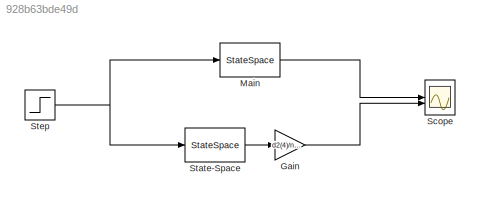
MODEL slx_928b63bde49d
KIND model
CONFIG AbsTol = auto
CONFIG EnableMultiTasking = off
CONFIG FixedStep = auto
CONFIG MaxStep = auto
CONFIG MinStep = auto
CONFIG RelTol = 1e-3
CONFIG SampleTimeConstraint = Unconstrained
CONFIG SolverName = VariableStepAuto
CONFIG StartTime = 0.0
CONFIG StopTime = 8
BLOCK [Gain] Gain
  Gain = d2(4)/n2(4)
BLOCK [StateSpace] Main
  A = A
  B = B
  C = C
  D = D
  InitialCondition = 0
BLOCK [Scope] Scope
  Floating = off
  NumInputPorts = 2
  ScopeSpecificationString = Simulink.scopes.TimeScopeBlockCfg('CurrentConfiguration', extmgr.ConfigurationSet(extmgr.Configuration('Core','General UI',true),extmgr.Configuration('Core','Source UI',true),extmgr.Configuration('Sources','WiredSimulink',true),extmgr.Configuration('Visuals','Time Domain',true,'SerializedDisplays',{struct('MinYLimReal','-0.19284','MaxYLimReal','1.73555','YLabelReal','','MinYLimMag','0.00000','MaxY...<+1358ch>
BLOCK [StateSpace] State-Space
  A = A-B*Kc
  B = B
  C = C
  D = D
  InitialCondition = 0
BLOCK [Step] Step
  SampleTime = 0
  Time = 0
LINE Gain:1 -> Scope:2
LINE Main:1 -> Scope:1
LINE State-Space:1 -> Gain:1
NET Step:1 -> Main:1, State-Space:1
note: NET lines group one-source signal fan-out (src -> all destinations, sorted); 1:1 wires keep LINE
